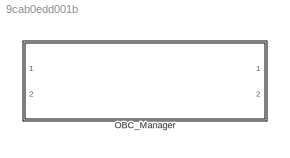
MODEL slx_9cab0edd001b
KIND library
CONFIG AbsTol = auto
CONFIG EnableMultiTasking = off
CONFIG FixedStep = auto
CONFIG MaxStep = auto
CONFIG MinStep = auto
CONFIG RelTol = 1e-3
CONFIG SampleTimeConstraint = Unconstrained
CONFIG Solver = VariableStepAuto
CONFIG SolverName = VariableStepAuto
CONFIG StartTime = 0.0
CONFIG StopTime = 10.0
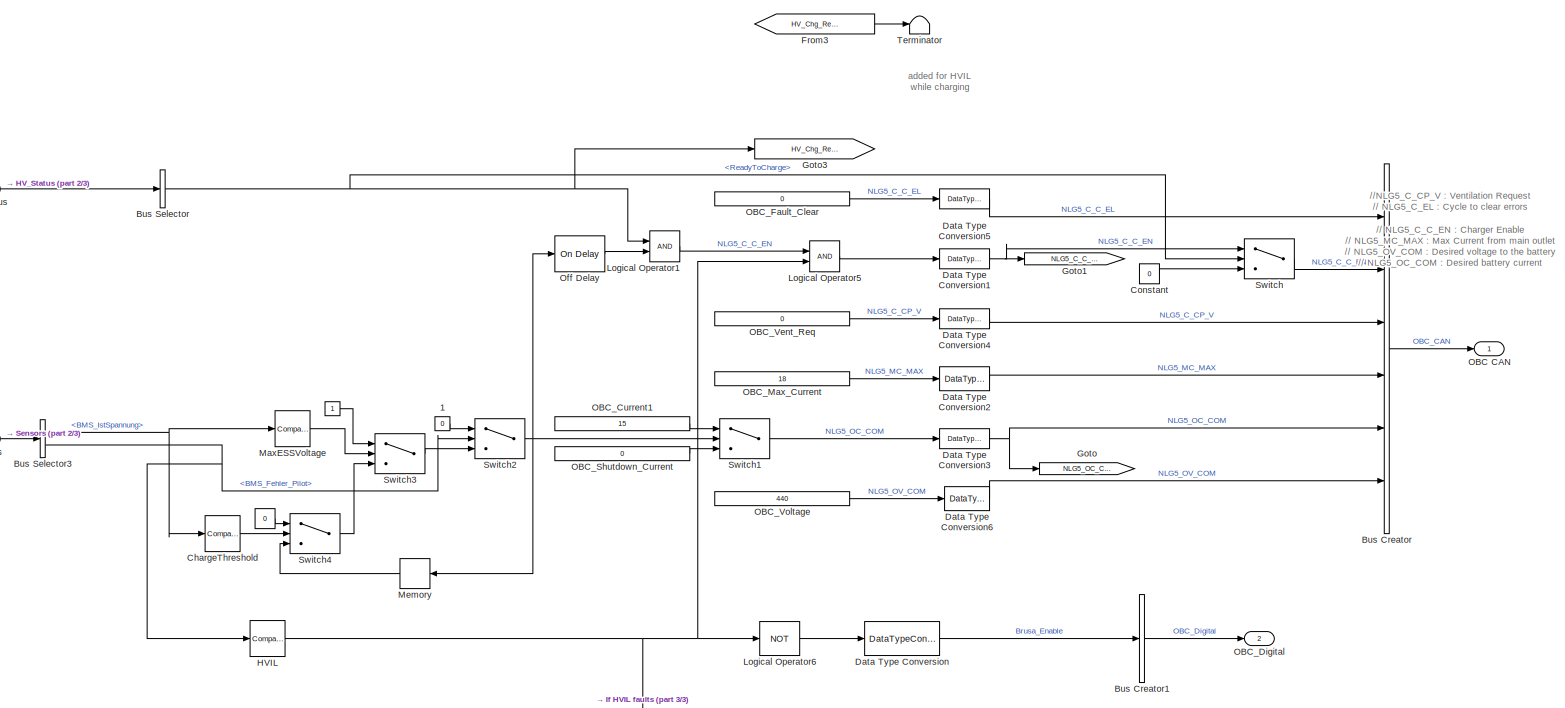
[diagram: OBC_Manager - part 1/3, full width, middle band]
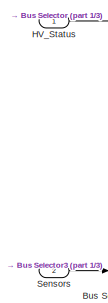
[diagram: OBC_Manager - part 2/3, top left region]
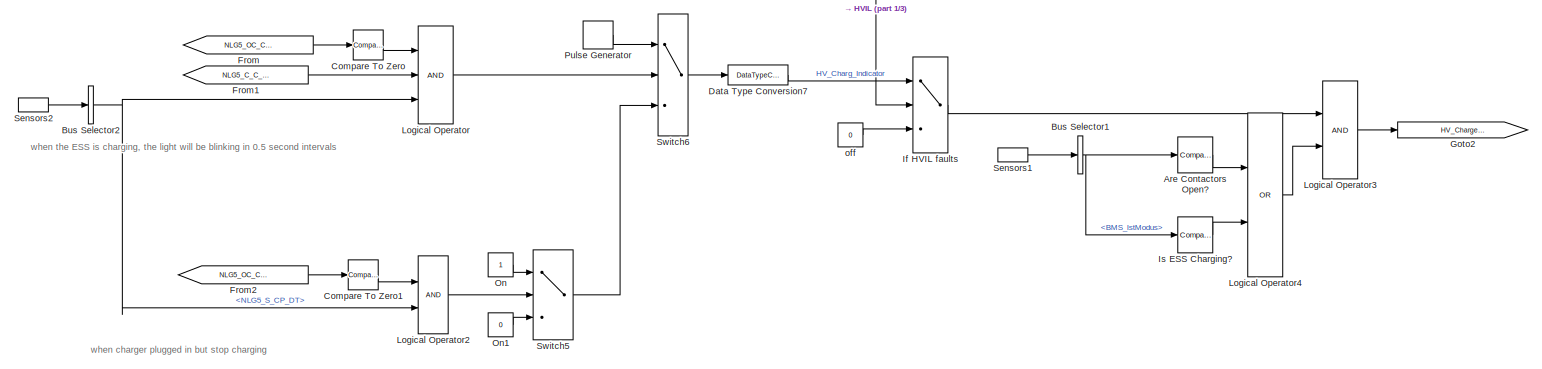
[diagram: OBC_Manager - part 3/3, full width, bottom band]
BLOCK [SubSystem] OBC_Manager
  Ports = [2, 2]
  RequestExecContextInheritance = off
  Variant = off
BLOCK [Constant] OBC_Manager/ 
BLOCK [Constant] OBC_Manager/   
  Value = 0
BLOCK [Constant] OBC_Manager/   1
  Value = 0
BLOCK [Reference] OBC_Manager/Are Contactors Open?  REF=simulink/Logic and Bit
Operations/Compare
To Constant
  Ports = [1, 1]
  SourceBlock = simulink/Logic and Bit\nOperations/Compare\nTo Constant
  SourceProductBaseCode = SL
  SourceProductName = Simulink
  SourceType = Compare To Constant
BLOCK [BusCreator] OBC_Manager/Bus Creator
  DisplayOption = bar
  InheritFromInputs = on
  Inputs = 6
  Ports = [6, 1]
BLOCK [BusCreator] OBC_Manager/Bus Creator1
  DisplayOption = bar
  InheritFromInputs = on
  Inputs = 1
  Ports = [1, 1]
BLOCK [BusSelector] OBC_Manager/Bus Selector
  OutputAsBus = off
  OutputSignals = ReadyToCharge
  Ports = [1, 1]
BLOCK [BusSelector] OBC_Manager/Bus Selector1
  OutputAsBus = off
  OutputSignals = from_CAN.fromHV_CAN.from_BMSHybrid.BMS_HYB_02.BMS_IstModus
  Ports = [1, 1]
BLOCK [BusSelector] OBC_Manager/Bus Selector2
  OutputAsBus = off
  OutputSignals = from_CAN.fromHV_CAN.from_OBC.NLG5_ST.NLG5_S_CP_DT
  Ports = [1, 1]
BLOCK [BusSelector] OBC_Manager/Bus Selector3
  OutputAsBus = off
  OutputSignals = from_CAN.fromHV_CAN.from_BMSHybrid.BMS_HYB_02.BMS_IstSpannung,from_CAN.fromHV_CAN.from_BMSHybrid.BMS_HYB_02.BMS_Fehler_Pilot
  Ports = [1, 2]
BLOCK [Reference] OBC_Manager/ChargeThreshold  REF=simulink/Logic and Bit
Operations/Compare
To Constant
  Ports = [1, 1]
  SourceBlock = simulink/Logic and Bit\nOperations/Compare\nTo Constant
  SourceProductBaseCode = SL
  SourceProductName = Simulink
  SourceType = Compare To Constant
BLOCK [Reference] OBC_Manager/Compare To Zero  REF=simulink/Logic and Bit
Operations/Compare
To Zero
  Ports = [1, 1]
  SourceBlock = simulink/Logic and Bit\nOperations/Compare\nTo Zero
  SourceProductBaseCode = SL
  SourceProductName = Simulink
  SourceType = Compare To Zero
BLOCK [Reference] OBC_Manager/Compare To Zero1  REF=simulink/Logic and Bit
Operations/Compare
To Zero
  Ports = [1, 1]
  SourceBlock = simulink/Logic and Bit\nOperations/Compare\nTo Zero
  SourceProductBaseCode = SL
  SourceProductName = Simulink
  SourceType = Compare To Zero
BLOCK [Constant] OBC_Manager/Constant
  Value = 0
BLOCK [DataTypeConversion] OBC_Manager/Data Type Conversion
  OutDataTypeStr = double
  RndMeth = Floor
  SaturateOnIntegerOverflow = off
BLOCK [DataTypeConversion] OBC_Manager/Data Type Conversion1
  RndMeth = Floor
  SaturateOnIntegerOverflow = off
BLOCK [DataTypeConversion] OBC_Manager/Data Type Conversion2
  RndMeth = Floor
  SaturateOnIntegerOverflow = off
BLOCK [DataTypeConversion] OBC_Manager/Data Type Conversion3
  RndMeth = Floor
  SaturateOnIntegerOverflow = off
BLOCK [DataTypeConversion] OBC_Manager/Data Type Conversion4
  RndMeth = Floor
  SaturateOnIntegerOverflow = off
BLOCK [DataTypeConversion] OBC_Manager/Data Type Conversion5
  RndMeth = Floor
  SaturateOnIntegerOverflow = off
BLOCK [DataTypeConversion] OBC_Manager/Data Type Conversion6
  RndMeth = Floor
  SaturateOnIntegerOverflow = off
BLOCK [DataTypeConversion] OBC_Manager/Data Type Conversion7
  OutDataTypeStr = boolean
  RndMeth = Floor
  SaturateOnIntegerOverflow = off
BLOCK [From] OBC_Manager/From
  GotoTag = NLG5_OC_COM
BLOCK [From] OBC_Manager/From1
  GotoTag = NLG5_C_C_EN
BLOCK [From] OBC_Manager/From2
  GotoTag = NLG5_OC_COM
BLOCK [From] OBC_Manager/From3
  GotoTag = HV_Chg_Ready
  TagVisibility = global
BLOCK [Goto] OBC_Manager/Goto
  GotoTag = NLG5_OC_COM
BLOCK [Goto] OBC_Manager/Goto1
  GotoTag = NLG5_C_C_EN
BLOCK [Goto] OBC_Manager/Goto2
  GotoTag = HV_Charge_Indicator
  TagVisibility = global
BLOCK [Goto] OBC_Manager/Goto3
  GotoTag = HV_Chg_Ready
  TagVisibility = global
BLOCK [Reference] OBC_Manager/HVIL  REF=simulink/Logic and Bit
Operations/Compare
To Constant
  Ports = [1, 1]
  SourceBlock = simulink/Logic and Bit\nOperations/Compare\nTo Constant
  SourceProductBaseCode = SL
  SourceProductName = Simulink
  SourceType = Compare To Constant
BLOCK [Inport] OBC_Manager/HV_Status
  IconDisplay = Port number
BLOCK [Switch] OBC_Manager/If HVIL faults
  Criteria = u2 > Threshold
  InputSameDT = off
  SaturateOnIntegerOverflow = off
BLOCK [Reference] OBC_Manager/Is ESS Charging?  REF=simulink/Logic and Bit
Operations/Compare
To Constant
  Ports = [1, 1]
  SourceBlock = simulink/Logic and Bit\nOperations/Compare\nTo Constant
  SourceProductBaseCode = SL
  SourceProductName = Simulink
  SourceType = Compare To Constant
BLOCK [Logic] OBC_Manager/Logical Operator
  AllPortsSameDT = off
  Inputs = 3
  OutDataTypeStr = boolean
  Ports = [3, 1]
BLOCK [Logic] OBC_Manager/Logical Operator1
  AllPortsSameDT = off
  OutDataTypeStr = boolean
  Ports = [2, 1]
BLOCK [Logic] OBC_Manager/Logical Operator2
  AllPortsSameDT = off
  OutDataTypeStr = boolean
  Ports = [2, 1]
BLOCK [Logic] OBC_Manager/Logical Operator3
  AllPortsSameDT = off
  OutDataTypeStr = boolean
  Ports = [2, 1]
BLOCK [Logic] OBC_Manager/Logical Operator4
  AllPortsSameDT = off
  Operator = OR
  OutDataTypeStr = boolean
  Ports = [2, 1]
BLOCK [Logic] OBC_Manager/Logical Operator5
  AllPortsSameDT = off
  OutDataTypeStr = boolean
  Ports = [2, 1]
BLOCK [Logic] OBC_Manager/Logical Operator6
  AllPortsSameDT = off
  Inputs = 3
  Operator = NOT
  OutDataTypeStr = boolean
  Ports = [1, 1]
BLOCK [Reference] OBC_Manager/MaxESSVoltage  REF=simulink/Logic and Bit
Operations/Compare
To Constant
  Ports = [1, 1]
  SourceBlock = simulink/Logic and Bit\nOperations/Compare\nTo Constant
  SourceProductBaseCode = SL
  SourceProductName = Simulink
  SourceType = Compare To Constant
BLOCK [Memory] OBC_Manager/Memory
  InheritSampleTime = on
BLOCK [Outport] OBC_Manager/OBC CAN
  IconDisplay = Port number
BLOCK [Constant] OBC_Manager/OBC_Current1
  Value = 15
BLOCK [Outport] OBC_Manager/OBC_Digital
  IconDisplay = Port number
  Port = 2
BLOCK [Constant] OBC_Manager/OBC_Fault_Clear
  Value = 0
BLOCK [Constant] OBC_Manager/OBC_Max_Current
  Value = 18
BLOCK [Constant] OBC_Manager/OBC_Shutdown_Current
  Value = 0
BLOCK [Constant] OBC_Manager/OBC_Vent_Req
  Value = 0
BLOCK [Constant] OBC_Manager/OBC_Voltage
  Value = 440
BLOCK [Reference] OBC_Manager/Off Delay  REF=powerlib_meascontrol/Logic/On Delay
  Ports = [1, 1]
  SourceBlock = powerlib_meascontrol/Logic/On Delay
  SourceProductBaseCode = PS
  SourceProductName = Simscape Power Systems
  SourceType = On/Off Delay
BLOCK [Constant] OBC_Manager/On
BLOCK [Constant] OBC_Manager/On1
  Value = 0
BLOCK [DiscretePulseGenerator] OBC_Manager/Pulse Generator
  Period = 1
  Ports = [0, 1]
  PulseType = Time based
  PulseWidth = 50
BLOCK [Inport] OBC_Manager/Sensors
  IconDisplay = Port number
  Port = 2
BLOCK [InportShadow] OBC_Manager/Sensors1
  IconDisplay = Port number
  Port = 2
BLOCK [InportShadow] OBC_Manager/Sensors2
  IconDisplay = Port number
  Port = 2
BLOCK [Switch] OBC_Manager/Switch
  Criteria = u2 > Threshold
  InputSameDT = off
  SaturateOnIntegerOverflow = off
BLOCK [Switch] OBC_Manager/Switch1
  Criteria = u2 > Threshold
  InputSameDT = off
  SaturateOnIntegerOverflow = off
BLOCK [Switch] OBC_Manager/Switch2
  Criteria = u2 ~= 0
  InputSameDT = off
  SaturateOnIntegerOverflow = off
BLOCK [Switch] OBC_Manager/Switch3
  Criteria = u2 > Threshold
  InputSameDT = off
  SaturateOnIntegerOverflow = off
BLOCK [Switch] OBC_Manager/Switch4
  Criteria = u2 > Threshold
  InputSameDT = off
  SaturateOnIntegerOverflow = off
BLOCK [Switch] OBC_Manager/Switch5
  Criteria = u2 > Threshold
  InputSameDT = off
  SaturateOnIntegerOverflow = off
BLOCK [Switch] OBC_Manager/Switch6
  Criteria = u2 > Threshold
  InputSameDT = off
  SaturateOnIntegerOverflow = off
BLOCK [Terminator] OBC_Manager/Terminator
BLOCK [Constant] OBC_Manager/off
  Value = 0
ANNOTATION OBC_Manager: //NLG5_C_CP_V : Ventilation Request // NLG5_C_EL : Cycle to clear errors // NLG5_C_C_EN : Charger Enable // NLG5_MC_MAX : Max Current from main outlet // NLG5_OV_COM : Desired voltage to the battery // NLG5_OC_COM : Desired battery current
ANNOTATION OBC_Manager: added for HVIL while charging
ANNOTATION OBC_Manager: when charger plugged in but stop charging
ANNOTATION OBC_Manager: when the ESS is charging, the light will be blinking in 0.5 second intervals
LINE OBC_Manager/   1:1 -> OBC_Manager/Switch2:1
LINE OBC_Manager/   :1 -> OBC_Manager/Switch4:1
LINE OBC_Manager/ :1 -> OBC_Manager/Switch3:1
LINE OBC_Manager/Are Contactors Open?:1 -> OBC_Manager/Logical Operator4:1
LINE OBC_Manager/Bus Creator1:1 -> OBC_Manager/OBC_Digital:1
LINE OBC_Manager/Bus Creator:1 -> OBC_Manager/OBC CAN:1
NET OBC_Manager/Bus Selector1:1 -> OBC_Manager/Are Contactors Open?:1, OBC_Manager/Is ESS Charging?:1
NET OBC_Manager/Bus Selector2:1 -> OBC_Manager/Logical Operator2:2, OBC_Manager/Logical Operator:3
NET OBC_Manager/Bus Selector3:1 -> OBC_Manager/ChargeThreshold:1, OBC_Manager/MaxESSVoltage:1
NET OBC_Manager/Bus Selector3:2 -> OBC_Manager/HVIL:1, OBC_Manager/Switch2:2
NET OBC_Manager/Bus Selector:1 -> OBC_Manager/Goto3:1, OBC_Manager/Logical Operator1:1, OBC_Manager/Switch:2
LINE OBC_Manager/ChargeThreshold:1 -> OBC_Manager/Switch4:2
LINE OBC_Manager/Compare To Zero1:1 -> OBC_Manager/Logical Operator2:1
LINE OBC_Manager/Compare To Zero:1 -> OBC_Manager/Logical Operator:1
LINE OBC_Manager/Constant:1 -> OBC_Manager/Switch:3
NET OBC_Manager/Data Type Conversion1:1 -> OBC_Manager/Goto1:1, OBC_Manager/Switch:1
LINE OBC_Manager/Data Type Conversion2:1 -> OBC_Manager/Bus Creator:4
NET OBC_Manager/Data Type Conversion3:1 -> OBC_Manager/Bus Creator:5, OBC_Manager/Goto:1
LINE OBC_Manager/Data Type Conversion4:1 -> OBC_Manager/Bus Creator:3
LINE OBC_Manager/Data Type Conversion5:1 -> OBC_Manager/Bus Creator:1
LINE OBC_Manager/Data Type Conversion6:1 -> OBC_Manager/Bus Creator:6
LINE OBC_Manager/Data Type Conversion7:1 -> OBC_Manager/If HVIL faults:1
LINE OBC_Manager/Data Type Conversion:1 -> OBC_Manager/Bus Creator1:1
LINE OBC_Manager/From1:1 -> OBC_Manager/Logical Operator:2
LINE OBC_Manager/From2:1 -> OBC_Manager/Compare To Zero1:1
LINE OBC_Manager/From3:1 -> OBC_Manager/Terminator:1
LINE OBC_Manager/From:1 -> OBC_Manager/Compare To Zero:1
NET OBC_Manager/HVIL:1 -> OBC_Manager/If HVIL faults:2, OBC_Manager/Logical Operator5:2, OBC_Manager/Logical Operator6:1
LINE OBC_Manager/HV_Status:1 -> OBC_Manager/Bus Selector:1
LINE OBC_Manager/If HVIL faults:1 -> OBC_Manager/Logical Operator3:1
LINE OBC_Manager/Is ESS Charging?:1 -> OBC_Manager/Logical Operator4:2
LINE OBC_Manager/Logical Operator1:1 -> OBC_Manager/Logical Operator5:1
LINE OBC_Manager/Logical Operator2:1 -> OBC_Manager/Switch5:2
LINE OBC_Manager/Logical Operator3:1 -> OBC_Manager/Goto2:1
LINE OBC_Manager/Logical Operator4:1 -> OBC_Manager/Logical Operator3:2
LINE OBC_Manager/Logical Operator5:1 -> OBC_Manager/Data Type Conversion1:1
LINE OBC_Manager/Logical Operator6:1 -> OBC_Manager/Data Type Conversion:1
LINE OBC_Manager/Logical Operator:1 -> OBC_Manager/Switch6:2
LINE OBC_Manager/MaxESSVoltage:1 -> OBC_Manager/Switch3:2
LINE OBC_Manager/Memory:1 -> OBC_Manager/Switch4:3
LINE OBC_Manager/OBC_Current1:1 -> OBC_Manager/Switch1:1
LINE OBC_Manager/OBC_Fault_Clear:1 -> OBC_Manager/Data Type Conversion5:1
LINE OBC_Manager/OBC_Max_Current:1 -> OBC_Manager/Data Type Conversion2:1
LINE OBC_Manager/OBC_Shutdown_Current:1 -> OBC_Manager/Switch1:3
LINE OBC_Manager/OBC_Vent_Req:1 -> OBC_Manager/Data Type Conversion4:1
LINE OBC_Manager/OBC_Voltage:1 -> OBC_Manager/Data Type Conversion6:1
LINE OBC_Manager/Off Delay:1 -> OBC_Manager/Logical Operator1:2
LINE OBC_Manager/On1:1 -> OBC_Manager/Switch5:3
LINE OBC_Manager/On:1 -> OBC_Manager/Switch5:1
LINE OBC_Manager/Pulse Generator:1 -> OBC_Manager/Switch6:1
LINE OBC_Manager/Sensors1:1 -> OBC_Manager/Bus Selector1:1
LINE OBC_Manager/Sensors2:1 -> OBC_Manager/Bus Selector2:1
LINE OBC_Manager/Sensors:1 -> OBC_Manager/Bus Selector3:1
LINE OBC_Manager/Switch1:1 -> OBC_Manager/Data Type Conversion3:1
NET OBC_Manager/Switch2:1 -> OBC_Manager/Memory:1, OBC_Manager/Off Delay:1, OBC_Manager/Switch1:2
LINE OBC_Manager/Switch3:1 -> OBC_Manager/Switch2:3
LINE OBC_Manager/Switch4:1 -> OBC_Manager/Switch3:3
LINE OBC_Manager/Switch5:1 -> OBC_Manager/Switch6:3
LINE OBC_Manager/Switch6:1 -> OBC_Manager/Data Type Conversion7:1
LINE OBC_Manager/Switch:1 -> OBC_Manager/Bus Creator:2
LINE OBC_Manager/off:1 -> OBC_Manager/If HVIL faults:3
note: NET lines group one-source signal fan-out (src -> all destinations, sorted); 1:1 wires keep LINE
